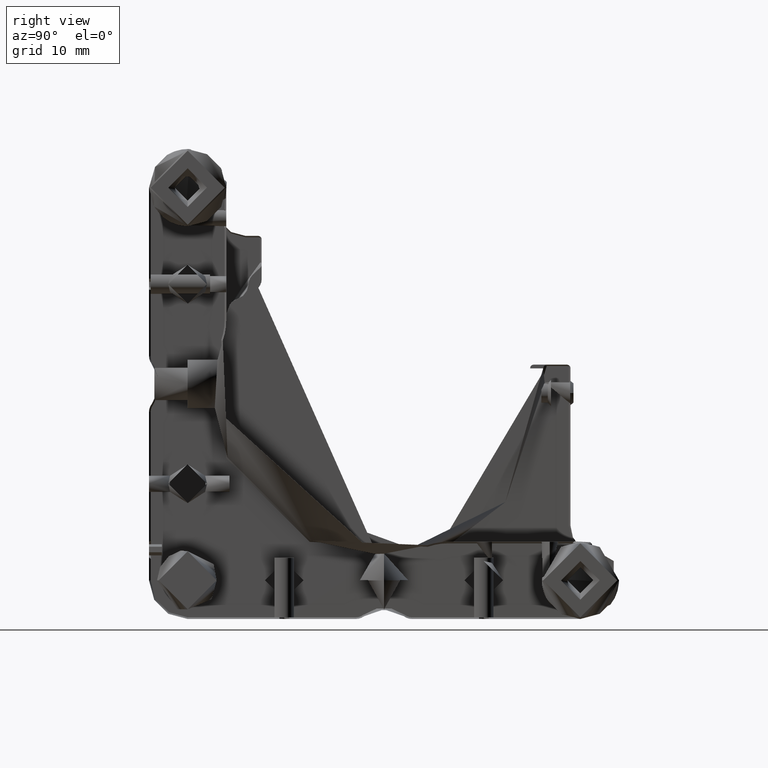
[diagram: clean part render]
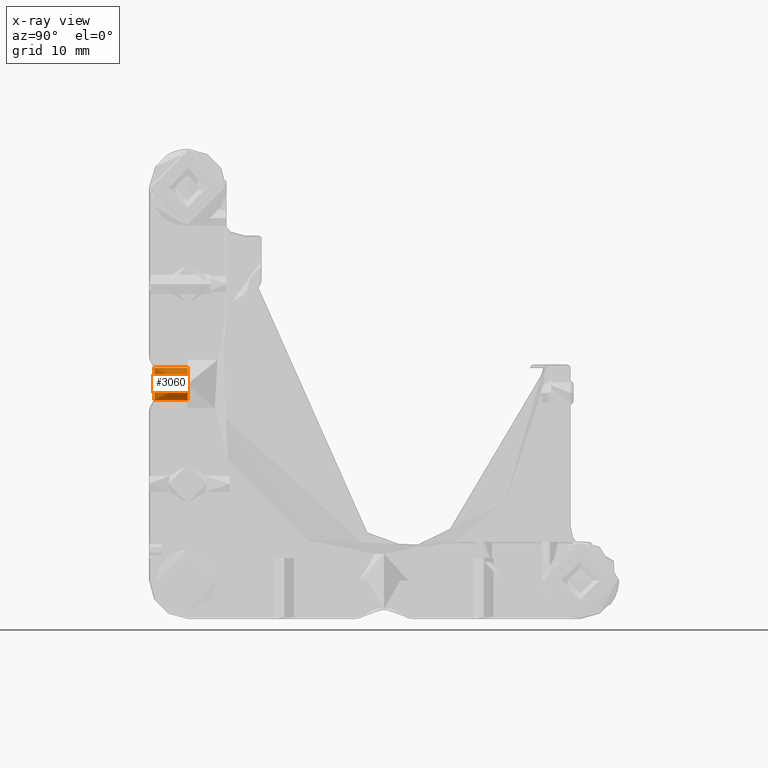
[diagram: x-ray — body ghosted, one internal face saturated and labeled with its STEP entity id]
A machine part, right view, then the same camera in x-ray: the body is ghosted and one INTERNAL B-rep face — a face not visible from any outside direction — is saturated and labeled: STEP entity #3060.
In plain terms, the highlighted cylindrical surface (bore or boss wall) has radius 2.5 mm, axis along (0, 1, -0).
Its self-contained STEP definition (entity closure, byte-faithful):
#54 = CARTESIAN_POINT ( 'NONE',  ( 9.007155916636728321, -36.55527425048526169, 50.46868272446700843 ) ) ;
#126 = CARTESIAN_POINT ( 'NONE',  ( 9.391667650746558849, -36.38240427249923670, 51.17997385355302953 ) ) ;
#274 = CARTESIAN_POINT ( 'NONE',  ( 7.195276811006773521, -36.98684088209608944, 54.49982077429050520 ) ) ;
#758 = EDGE_CURVE ( 'NONE', #4538, #4538, #4685, .T. ) ;
#1190 = CARTESIAN_POINT ( 'NONE',  ( 7.024380677085799718, -36.98694435803103886, 49.50000000000012790 ) ) ;
#1336 = CARTESIAN_POINT ( 'NONE',  ( 9.267580114666467139, -36.44071958033806169, 53.11585804100332808 ) ) ;
#1410 = CARTESIAN_POINT ( 'NONE',  ( 4.540722263758103949, -36.32530214877193231, 51.67027136776111718 ) ) ;
#2055 = VERTEX_POINT ( 'NONE', #13372 ) ;
#2196 = CARTESIAN_POINT ( 'NONE',  ( 6.858769096149575972, -36.98704622162888001, 54.50017643305893245 ) ) ;
#2273 = CARTESIAN_POINT ( 'NONE',  ( 8.293045727909316156, -36.81433709442871560, 54.17840497288317891 ) ) ;
#2348 = CARTESIAN_POINT ( 'NONE',  ( 7.687671406332891699, -36.93944317061784233, 54.41616092052949938 ) ) ;
#2421 = CARTESIAN_POINT ( 'NONE',  ( 5.486383553721655204, -36.72672779848327451, 53.99681841964710571 ) ) ;
#2492 = CARTESIAN_POINT ( 'NONE',  ( 4.781507774802209454, -36.44087058555128777, 50.88347109892938391 ) ) ;
#3060 = ADVANCED_FACE ( 'NONE', ( #13794, #8151 ), #3798, .T. ) ;
#3296 = CARTESIAN_POINT ( 'NONE',  ( 7.839889005873661887, -36.91326519042660692, 49.63113284615850773 ) ) ;
#3367 = CARTESIAN_POINT ( 'NONE',  ( 8.563529734455045173, -36.72632997220149775, 50.00410265889257033 ) ) ;
#3413 = DIRECTION ( 'NONE',  ( 0.000000000000000000, 2.775557561562896873E-15, 1.000000000000000000 ) ) ;
#3445 = CARTESIAN_POINT ( 'NONE',  ( 9.188470399967037849, -36.47696822188076027, 50.73784077064662767 ) ) ;
#3533 = AXIS2_PLACEMENT_3D ( 'NONE', #10381, #13661, #11409 ) ;
#3734 = CARTESIAN_POINT ( 'NONE',  ( 7.024380677085799718, -36.98694435803103886, 49.50000000000012790 ) ) ;
#3798 = CYLINDRICAL_SURFACE ( 'NONE', #3533, 2.499999999999995115 ) ;
#4458 = CARTESIAN_POINT ( 'NONE',  ( 9.524718211429362924, -36.31690261005211084, 52.16127491867703725 ) ) ;
#4529 = CARTESIAN_POINT ( 'NONE',  ( 9.190497975395851782, -36.47605432099910416, 53.25862957795333585 ) ) ;
#4538 = VERTEX_POINT ( 'NONE', #10037 ) ;
#4679 = CARTESIAN_POINT ( 'NONE',  ( 9.524032533558365543, -36.31724544844204416, 51.82842499752378984 ) ) ;
#4685 = CIRCLE ( 'NONE', #6072, 2.499999999999995115 ) ;
#4753 = CARTESIAN_POINT ( 'NONE',  ( 4.607481514940319656, -36.35818257603342829, 52.66028532853253807 ) ) ;
#4969 = EDGE_LOOP ( 'NONE', ( #10510 ) ) ;
#5104 = CARTESIAN_POINT ( 'NONE',  ( 5.757165905633030434, -36.81476660578643134, 49.82071681193160373 ) ) ;
#5543 = CARTESIAN_POINT ( 'NONE',  ( 7.357222112955964732, -36.97713429358183390, 49.51678802081709563 ) ) ;
#5617 = CARTESIAN_POINT ( 'NONE',  ( 6.210808725104143058, -36.91362911053127505, 54.36954147526147096 ) ) ;
#5687 = CARTESIAN_POINT ( 'NONE',  ( 4.657264327684227823, -36.38248691427502735, 52.82053866892891136 ) ) ;
#5766 = CARTESIAN_POINT ( 'NONE',  ( 6.693894758619833851, -36.97731962903497305, 54.48353374376439007 ) ) ;
#5840 = CARTESIAN_POINT ( 'NONE',  ( 4.858683270876595905, -36.47624393947786814, 50.74063422358372577 ) ) ;
#5892 = EDGE_LOOP ( 'NONE', ( #14183 ) ) ;
#6072 = AXIS2_PLACEMENT_3D ( 'NONE', #9930, #13428, #3413 ) ;
#6124 = CARTESIAN_POINT ( 'NONE',  ( 6.688039937797166878, -36.98694435803103886, 49.50000000000012079 ) ) ;
#6634 = CARTESIAN_POINT ( 'NONE',  ( 9.507240973723929400, -36.32570142600247465, 51.66422219089565715 ) ) ;
#6714 = CARTESIAN_POINT ( 'NONE',  ( 6.370731850175575417, -36.94083085794875387, 54.41865748087641919 ) ) ;
#6783 = CARTESIAN_POINT ( 'NONE',  ( 9.508060722747195825, -36.32529117809813357, 52.32951216190345178 ) ) ;
#6856 = CARTESIAN_POINT ( 'NONE',  ( 4.524729103716995660, -36.31724558999361108, 52.17168477518351466 ) ) ;
#6929 = CARTESIAN_POINT ( 'NONE',  ( 8.906150231721282395, -36.59689692148470641, 53.65367917299005995 ) ) ;
#7788 = CARTESIAN_POINT ( 'NONE',  ( 8.566128290216044050, -36.72545438118686434, 53.99395590551613822 ) ) ;
#7869 = CARTESIAN_POINT ( 'NONE',  ( 5.042254164516491777, -36.55554617458143696, 53.53216875248400441 ) ) ;
#8011 = CARTESIAN_POINT ( 'NONE',  ( 4.783725241795549366, -36.44188719710970048, 53.12070814180862754 ) ) ;
#8151 = FACE_OUTER_BOUND ( 'NONE', #4969, .T. ) ;
#8878 = CARTESIAN_POINT ( 'NONE',  ( 7.845161205124633774, -36.91224936838489867, 54.36697256723827820 ) ) ;
#8948 = CARTESIAN_POINT ( 'NONE',  ( 5.759150464523946411, -36.81546884214193938, 54.18075606278221557 ) ) ;
#9029 = CARTESIAN_POINT ( 'NONE',  ( 4.541542267885349204, -36.32571252929367489, 52.33599361430498220 ) ) ;
#9098 = CARTESIAN_POINT ( 'NONE',  ( 4.605688300144866965, -36.35730588576350897, 51.34638905246367813 ) ) ;
#9166 = CARTESIAN_POINT ( 'NONE',  ( 5.143372501961081866, -36.59720321819343525, 50.34544505337453302 ) ) ;
#9930 = CARTESIAN_POINT ( 'NONE',  ( 7.024380677085800606, -31.81707137695323340, 52.00000000000009948 ) ) ;
#9954 = CARTESIAN_POINT ( 'NONE',  ( 8.291056813375341505, -36.81503974546535574, 49.82012081223701472 ) ) ;
#10037 = CARTESIAN_POINT ( 'NONE',  ( 7.024380677085800606, -31.81707137695322629, 54.50000000000009948 ) ) ;
#10097 = CARTESIAN_POINT ( 'NONE',  ( 8.903613044601302207, -36.59790873965801694, 50.34345775389160593 ) ) ;
#10177 = CARTESIAN_POINT ( 'NONE',  ( 4.524042863162311079, -36.31690247026246965, 51.83861701905346564 ) ) ;
#10248 = CARTESIAN_POINT ( 'NONE',  ( 5.039339077820042867, -36.55432477704172101, 50.47164884164198639 ) ) ;
#10381 = CARTESIAN_POINT ( 'NONE',  ( 7.024380677085800606, -25.81707137695323340, 52.00000000000007816 ) ) ;
#10510 = ORIENTED_EDGE ( 'NONE', *, *, #758, .T. ) ;
#11043 = CARTESIAN_POINT ( 'NONE',  ( 9.010064606991756264, -36.55405524686429430, 53.52750512112083214 ) ) ;
#11120 = CARTESIAN_POINT ( 'NONE',  ( 9.441387635378253762, -36.35812981941635513, 51.34013686777130658 ) ) ;
#11194 = CARTESIAN_POINT ( 'NONE',  ( 9.443178525000192280, -36.35725424186242805, 52.65319354328079271 ) ) ;
#11267 = CARTESIAN_POINT ( 'NONE',  ( 4.860711514816685508, -36.47715805285888990, 53.26289443508321853 ) ) ;
#11328 = EDGE_CURVE ( 'NONE', #2055, #2055, #11476, .T. ) ;
#11348 = CARTESIAN_POINT ( 'NONE',  ( 9.394497728001612202, -36.38104889294534416, 52.81217488842744245 ) ) ;
#11409 = DIRECTION ( 'NONE',  ( 0.000000000000000000, 4.163336342344344915E-15, 1.000000000000000000 ) ) ;
#11476 = B_SPLINE_CURVE_WITH_KNOTS ( 'NONE', 3,
 ( #1190, #12125, #5543, #12199, #3296, #9954, #3367, #10097, #54, #3445, #12279, #126, #11120, #6634, #4679, #4458, #6783, #11194, #11348, #1336, #4529, #11043, #6929, #7788, #2273, #8878, #2348, #13300, #274, #2196, #5766, #6714, #5617, #8948, #2421, #13377, #7869, #11267, #8011, #5687, #4753, #9029, #6856, #10177, #1410, #9098, #13530, #2492, #5840, #10248, #9166, #13671, #5104, #13593, #6124, #3734 ),
 .UNSPECIFIED., .T., .F.,
 ( 4, 2, 2, 2, 2, 2, 2, 2, 2, 2, 2, 2, 2, 2, 2, 2, 2, 2, 2, 2, 2, 2, 2, 2, 2, 2, 2, 4 ),
 ( 0.000000000000000000, 0.0004965314639976793967, 0.0009930629279953587935, 0.001986125855990721924, 0.002482657319988402621, 0.002979188783986083753, 0.003475720247983764451, 0.003972251711981444715, 0.004468783175979125846, 0.004965314639976805243, 0.005461846103974485507, 0.005958377567972166639, 0.006951440495967513289, 0.007447971959965190951, 0.007944503423962868613, 0.008441034887960545408, 0.008937566351958223937, 0.009930629279953586200, 0.01042716074395126646, 0.01092369220794894499, 0.01142022367194662352, 0.01191675513594430379, 0.01241328659994198405, 0.01290981806393966258, 0.01340634952793734111, 0.01390288099193502137, 0.01489594391993037323, 0.01588900684792572335 ),
 .UNSPECIFIED. ) ;
#12125 = CARTESIAN_POINT ( 'NONE',  ( 7.192551046730118358, -36.98694435803103886, 49.50000000000012790 ) ) ;
#12199 = CARTESIAN_POINT ( 'NONE',  ( 7.680114045195102435, -36.94051374380796915, 49.58191420645633229 ) ) ;
#12279 = CARTESIAN_POINT ( 'NONE',  ( 9.265362281704977221, -36.44173647888131740, 50.87995895419901871 ) ) ;
#13300 = CARTESIAN_POINT ( 'NONE',  ( 7.361010514519646719, -36.97691080747556214, 54.48283477862470647 ) ) ;
#13372 = CARTESIAN_POINT ( 'NONE',  ( 7.024380677085800606, -36.98694435803104597, 49.50000000000012790 ) ) ;
#13377 = CARTESIAN_POINT ( 'NONE',  ( 5.145909055006848476, -36.59821448262096766, 53.65741488564987804 ) ) ;
#13428 = DIRECTION ( 'NONE',  ( -0.000000000000000000, -1.000000000000000000, 3.552713678800500929E-15 ) ) ;
#13530 = CARTESIAN_POINT ( 'NONE',  ( 4.654434985610025777, -36.38113196456014720, 51.18730506204392583 ) ) ;
#13593 = CARTESIAN_POINT ( 'NONE',  ( 6.354961525487576424, -36.94522543090142364, 49.56957071893479849 ) ) ;
#13661 = DIRECTION ( 'NONE',  ( 0.000000000000000000, 1.000000000000000000, -3.552713678800500929E-15 ) ) ;
#13671 = CARTESIAN_POINT ( 'NONE',  ( 5.483779729068870346, -36.72585084143270251, 50.00512556181456603 ) ) ;
#13794 = FACE_OUTER_BOUND ( 'NONE', #5892, .T. ) ;
#14183 = ORIENTED_EDGE ( 'NONE', *, *, #11328, .F. ) ;